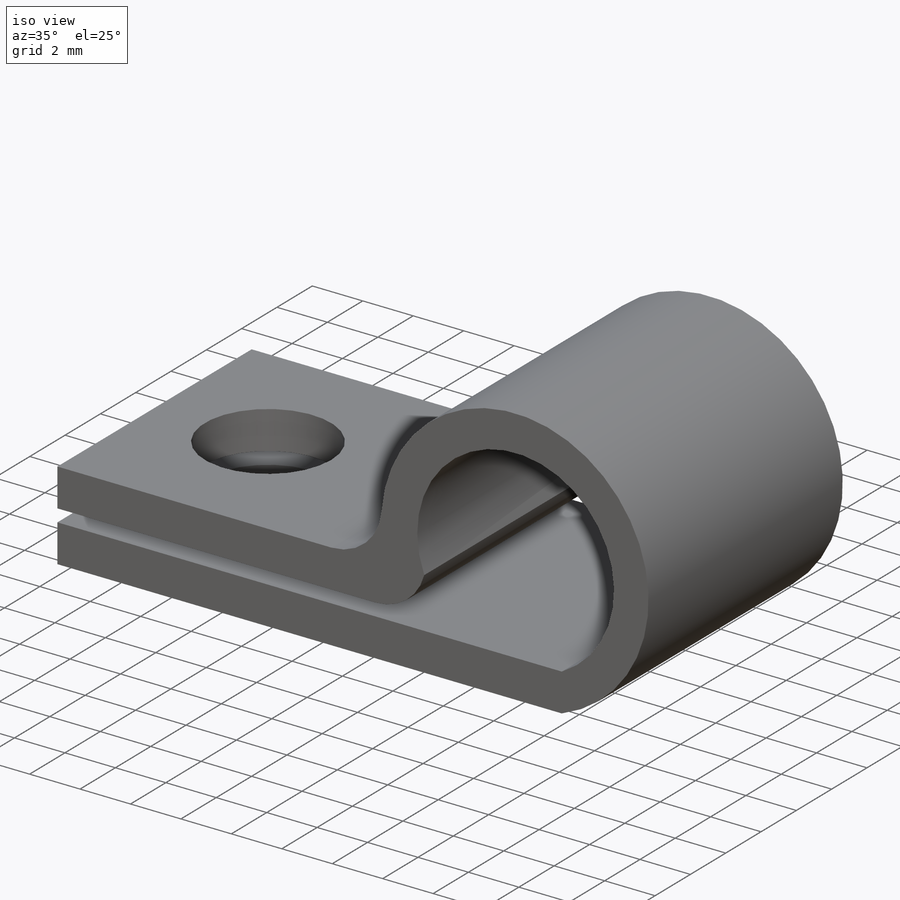
[diagram: iso view]
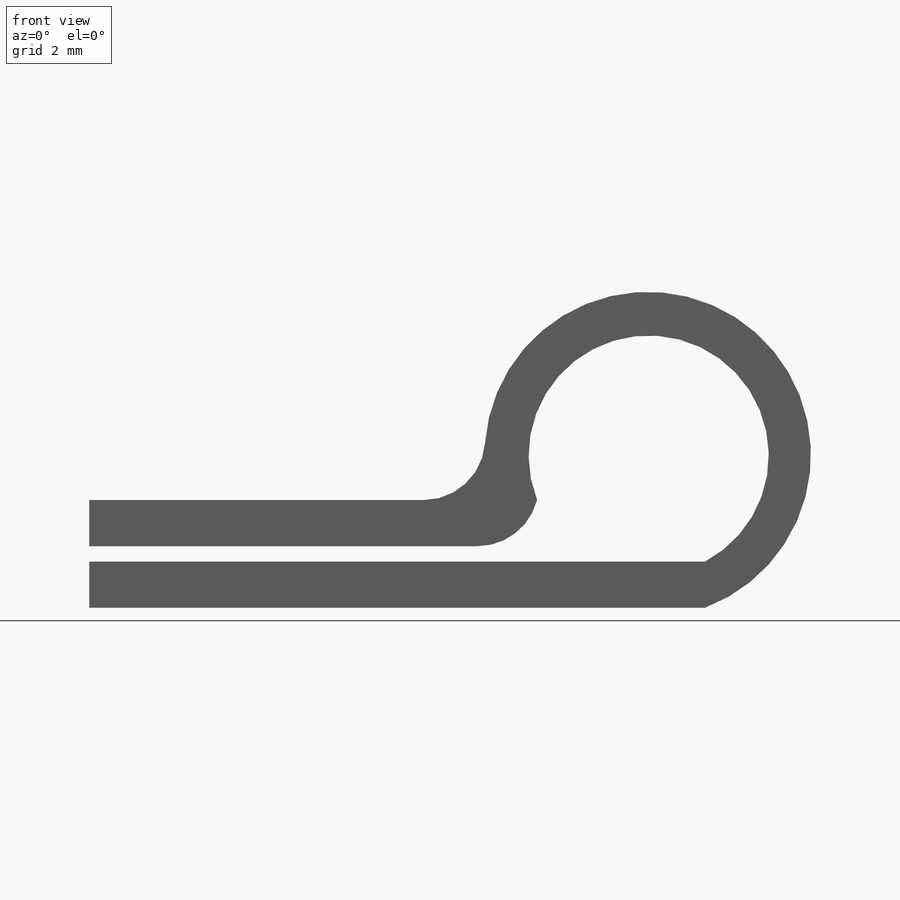
[diagram: front view]
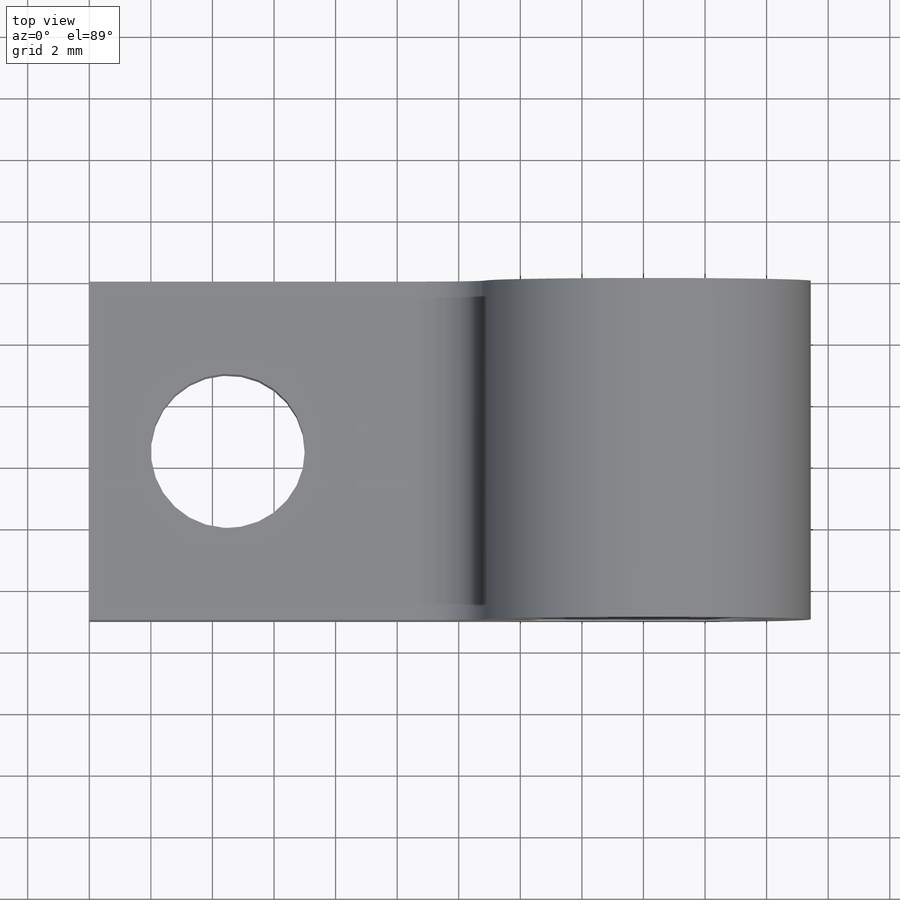
[diagram: top view]
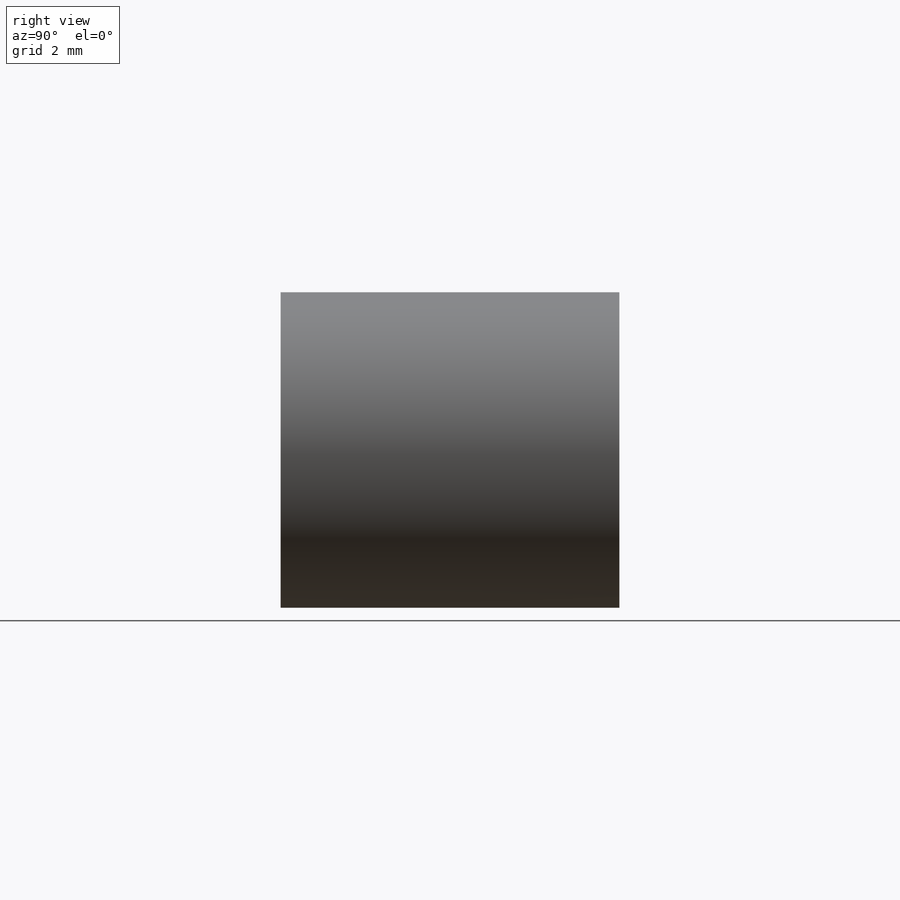
[diagram: right view]
SOLIDWORKS PART (.sldprt)
format: sldprt  version: not decoded by parser v0  size: 203,264 bytes
history: native  units: mm
features: sketch x2, fillet x2, material x1, extrude x1, plane x1, cut_extrude x1 (+13 scaffold rows collapsed)
feature tree (21):
  scaffold x13  (default folders/planes/origin — collapsed)
  material  "Material <not specified>"
  sketch  "Sketch1"  dims[c1.D6=3.9mm c1.D7=3.0mm c1.D8=5.3mm c1.D1=20.0mm c1.D2=1.5mm c1.D3=1.5mm c1.D4=0.5mm c1.D5=13.0mm c2.D7=1.5mm c2.D9=~5.453808mm c2.D5=0.0mm]
  extrude  "Boss-Extrude1"  Depth=11mm
  plane  "Plane1"  Offset=0mm
  sketch  "Sketch2"  dims[D1=4.5mm D2=5.5mm]
  cut_extrude  "Cut-Extrude1"  [1 undecoded]
  fillet  "Fillet1"  Radius=2mm
  fillet  "Fillet2"  Radius=2mm
decode coverage: 5 of 6 modeling features carry decoded parameters
note: ~ marks probable driven/reference dimensions
note: 1 parameter value undecoded
note: suppression state not decoded; provenance and decode notes live in map.json
